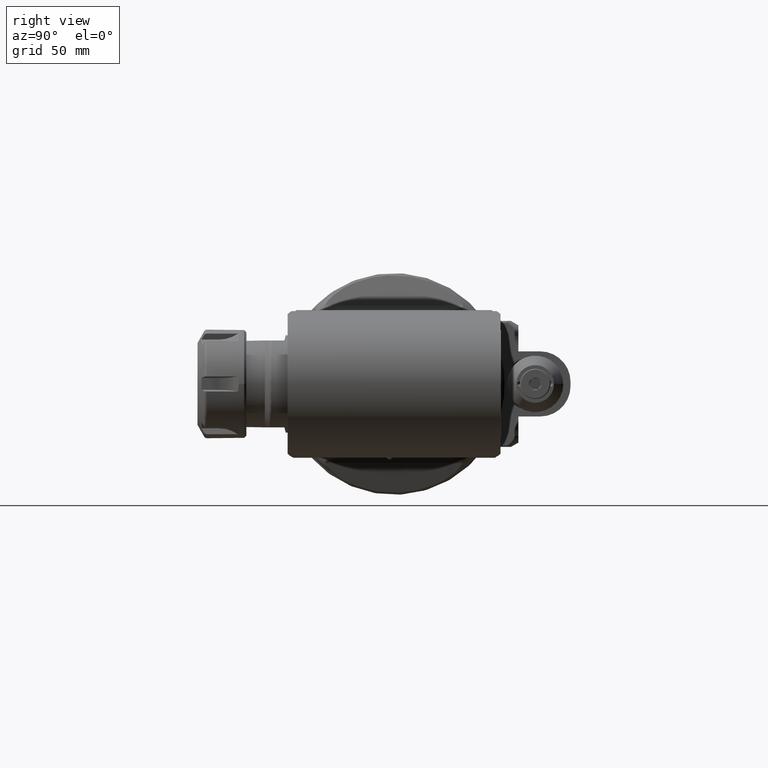
[diagram: clean part render]
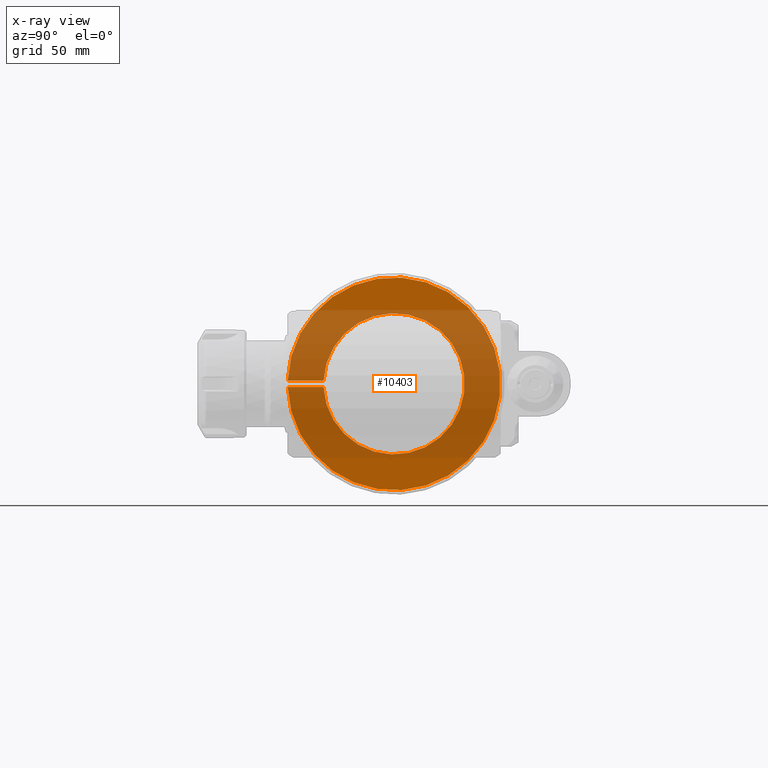
[diagram: x-ray — body ghosted, one internal face saturated and labeled with its STEP entity id]
A machine part, right view, then the same camera in x-ray: the body is ghosted and one INTERNAL B-rep face — a face not visible from any outside direction — is saturated and labeled: STEP entity #10403.
In plain terms, the highlighted planar face has unit normal (1, 0, 0).
Its self-contained STEP definition (entity closure, byte-faithful):
#1092=LINE('',#21116,#1874);
#1097=LINE('',#21150,#1879);
#1874=VECTOR('',#12923,16.51166927349);
#1879=VECTOR('',#12934,16.51166927349);
#2608=FACE_OUTER_BOUND('',#3203,.T.);
#3203=EDGE_LOOP('',(#8257,#8258,#8259,#8260));
#3730=CIRCLE('',#11175,49.);
#3733=CIRCLE('',#11180,32.5);
#4580=VERTEX_POINT('',#21105);
#4581=VERTEX_POINT('',#21109);
#4582=VERTEX_POINT('',#21115);
#4590=VERTEX_POINT('',#21149);
#5892=EDGE_CURVE('',#4581,#4580,#3730,.T.);
#5894=EDGE_CURVE('',#4582,#4581,#1092,.T.);
#5903=EDGE_CURVE('',#4580,#4590,#1097,.T.);
#5904=EDGE_CURVE('',#4590,#4582,#3733,.T.);
#8257=ORIENTED_EDGE('',*,*,#5892,.T.);
#8258=ORIENTED_EDGE('',*,*,#5903,.T.);
#8259=ORIENTED_EDGE('',*,*,#5904,.T.);
#8260=ORIENTED_EDGE('',*,*,#5894,.T.);
#10011=PLANE('',#11179);
#10403=ADVANCED_FACE('',(#2608),#10011,.T.);
#11175=AXIS2_PLACEMENT_3D('',#21110,#12919,#12920);
#11179=AXIS2_PLACEMENT_3D('',#21148,#12932,#12933);
#11180=AXIS2_PLACEMENT_3D('',#21151,#12935,#12936);
#12919=DIRECTION('center_axis',(1.,0.,0.));
#12920=DIRECTION('ref_axis',(0.,1.,0.));
#12923=DIRECTION('',(0.,-1.,0.));
#12932=DIRECTION('center_axis',(1.,0.,0.));
#12933=DIRECTION('ref_axis',(0.,-1.,0.));
#12934=DIRECTION('',(0.,1.,0.));
#12935=DIRECTION('center_axis',(-1.,0.,0.));
#12936=DIRECTION('ref_axis',(0.,-0.998934343430642,0.0461538461538519));
#21105=CARTESIAN_POINT('',(-12.,-48.97703543499,1.5));
#21109=CARTESIAN_POINT('',(-12.,-48.97703543499,-1.5));
#21110=CARTESIAN_POINT('Origin',(-12.,0.,0.));
#21115=CARTESIAN_POINT('',(-12.,-32.4653661615,-1.5));
#21116=CARTESIAN_POINT('',(-12.,-32.4653661615,-1.5));
#21148=CARTESIAN_POINT('Origin',(-12.,-49.13074005203,0.));
#21149=CARTESIAN_POINT('',(-12.,-32.4653661615,1.5));
#21150=CARTESIAN_POINT('',(-12.,-48.97703543499,1.5));
#21151=CARTESIAN_POINT('Origin',(-12.,0.,0.));